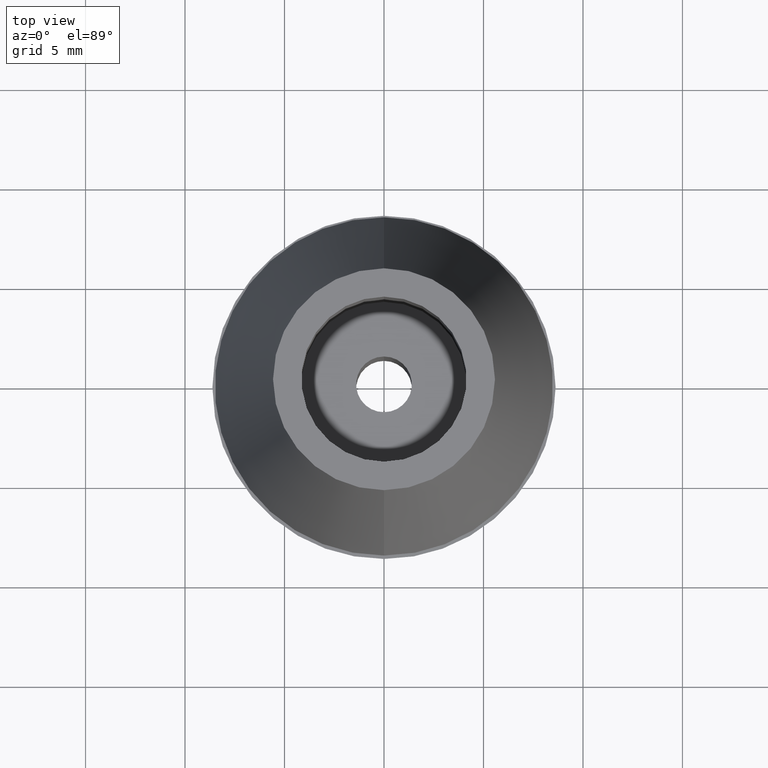
[diagram: clean part render]
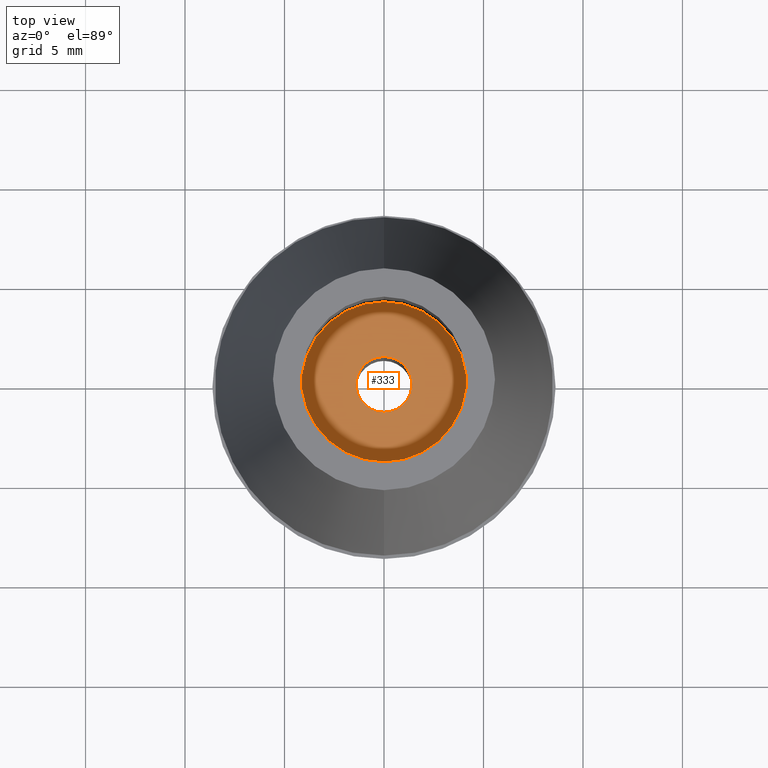
[diagram: same view with one face highlighted and labeled with its STEP entity id]
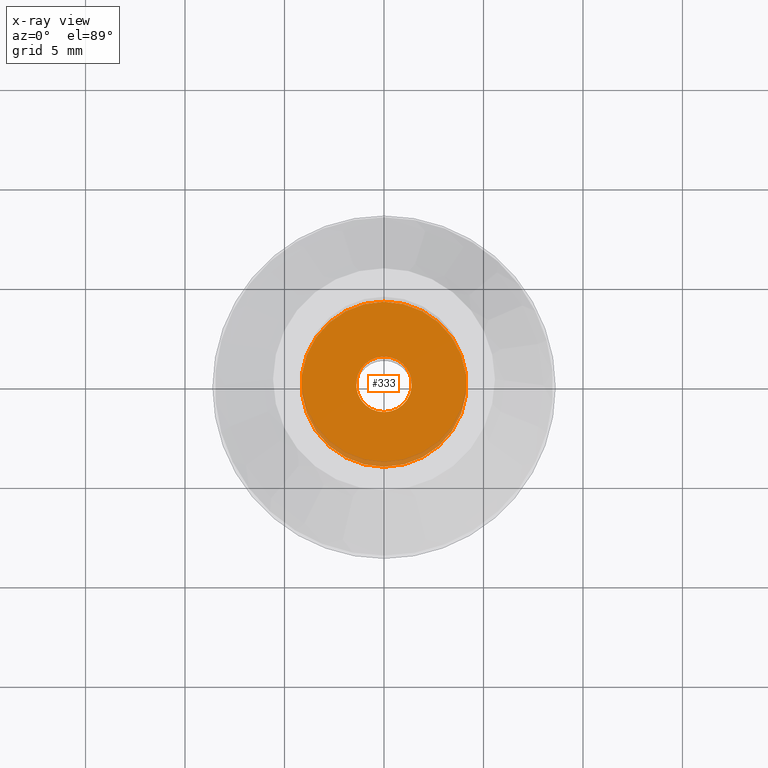
[diagram: x-ray of the same camera — body ghosted, the highlighted face saturated]
A machine part, top view. The second image highlights one B-rep face of the part: STEP entity #333.
The next image is the same camera in x-ray: the body ghosted, the highlighted face saturated — about 4% of this face is hidden behind the body in this view.
In plain terms, the highlighted planar face has unit normal (0, 0, -1).
Its self-contained STEP definition (entity closure, byte-faithful):
#32=CARTESIAN_POINT('',(0.E0,1.452614800809E-14,-1.4768E1));
#33=DIRECTION('',(0.E0,0.E0,-1.E0));
#34=DIRECTION('',(0.E0,-1.E0,0.E0));
#35=AXIS2_PLACEMENT_3D('',#32,#33,#34);
#40=CARTESIAN_POINT('',(0.E0,1.452614800809E-14,-1.4768E1));
#41=DIRECTION('',(0.E0,0.E0,-1.E0));
#42=DIRECTION('',(0.E0,1.E0,0.E0));
#43=AXIS2_PLACEMENT_3D('',#40,#41,#42);
#48=CARTESIAN_POINT('',(0.E0,1.452614800809E-14,-1.4768E1));
#49=DIRECTION('',(0.E0,0.E0,1.E0));
#50=DIRECTION('',(0.E0,-1.E0,0.E0));
#51=AXIS2_PLACEMENT_3D('',#48,#49,#50);
#56=CARTESIAN_POINT('',(0.E0,1.452614800809E-14,-1.4768E1));
#57=DIRECTION('',(0.E0,0.E0,1.E0));
#58=DIRECTION('',(0.E0,1.E0,0.E0));
#59=AXIS2_PLACEMENT_3D('',#56,#57,#58);
#248=CARTESIAN_POINT('',(0.E0,4.15E0,-1.4768E1));
#250=VERTEX_POINT('',#248);
#254=CARTESIAN_POINT('',(0.E0,-4.15E0,-1.4768E1));
#255=VERTEX_POINT('',#254);
#256=CARTESIAN_POINT('',(0.E0,-1.4E0,-1.4768E1));
#257=CARTESIAN_POINT('',(0.E0,1.4E0,-1.4768E1));
#258=VERTEX_POINT('',#256);
#259=VERTEX_POINT('',#257);
#318=CARTESIAN_POINT('',(0.E0,1.254920068022E-14,-1.4768E1));
#319=DIRECTION('',(0.E0,0.E0,-1.E0));
#320=DIRECTION('',(0.E0,-1.E0,0.E0));
#321=AXIS2_PLACEMENT_3D('',#318,#319,#320);
#322=PLANE('',#321);
#323=ORIENTED_EDGE('',*,*,#310,.T.);
#324=ORIENTED_EDGE('',*,*,#299,.T.);
#325=EDGE_LOOP('',(#323,#324));
#326=FACE_OUTER_BOUND('',#325,.F.);
#328=ORIENTED_EDGE('',*,*,#327,.T.);
#330=ORIENTED_EDGE('',*,*,#329,.T.);
#331=EDGE_LOOP('',(#328,#330));
#332=FACE_BOUND('',#331,.F.);
#36=CIRCLE('',#35,4.15E0);
#44=CIRCLE('',#43,4.15E0);
#52=CIRCLE('',#51,1.4E0);
#60=CIRCLE('',#59,1.4E0);
#299=EDGE_CURVE('',#250,#255,#44,.T.);
#310=EDGE_CURVE('',#255,#250,#36,.T.);
#327=EDGE_CURVE('',#258,#259,#52,.T.);
#329=EDGE_CURVE('',#259,#258,#60,.T.);
#333=ADVANCED_FACE('',(#326,#332),#322,.F.);